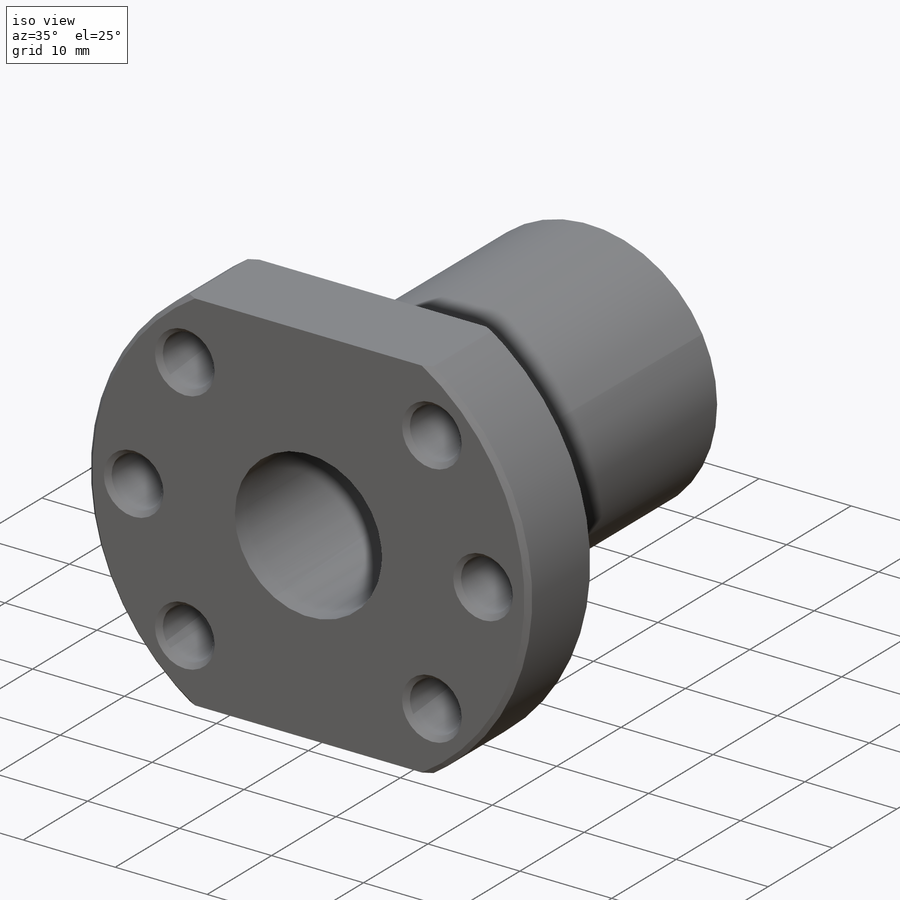
[diagram: iso view]
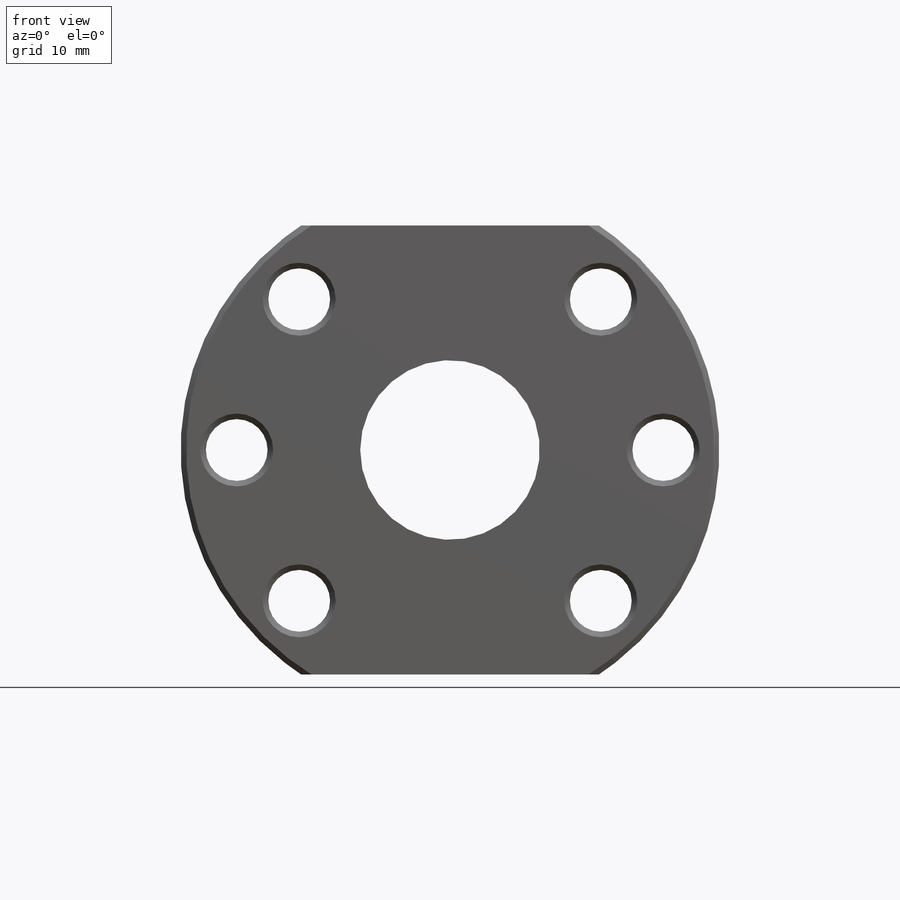
[diagram: front view]
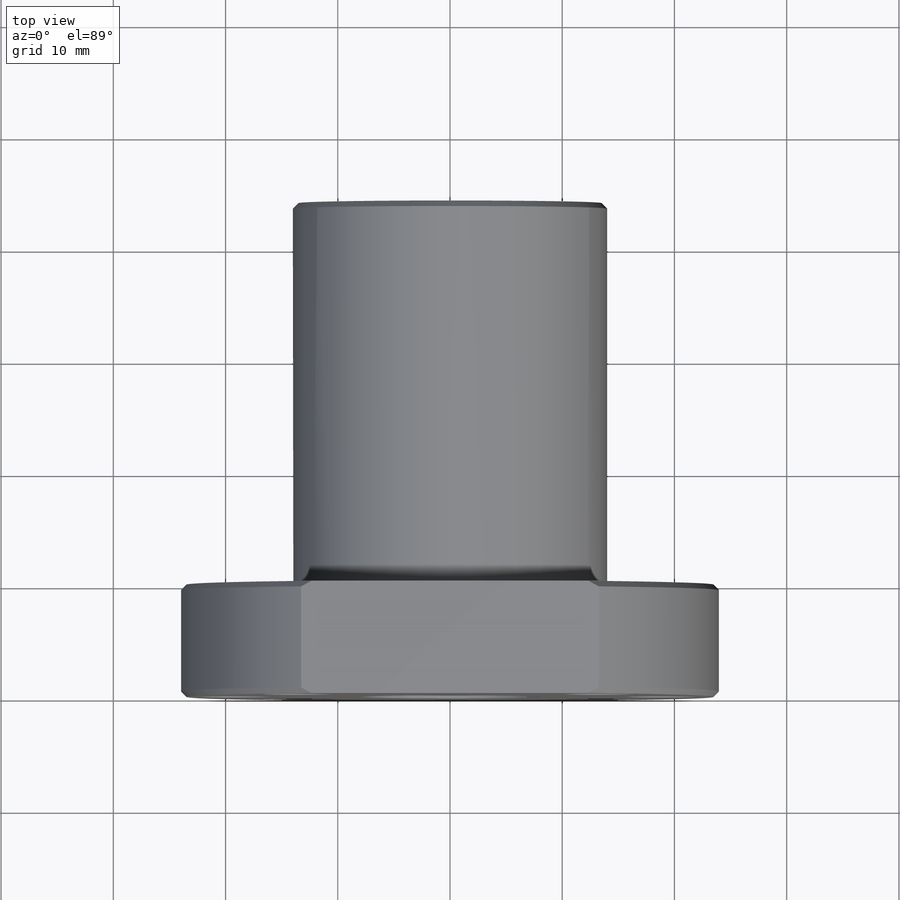
[diagram: top view]
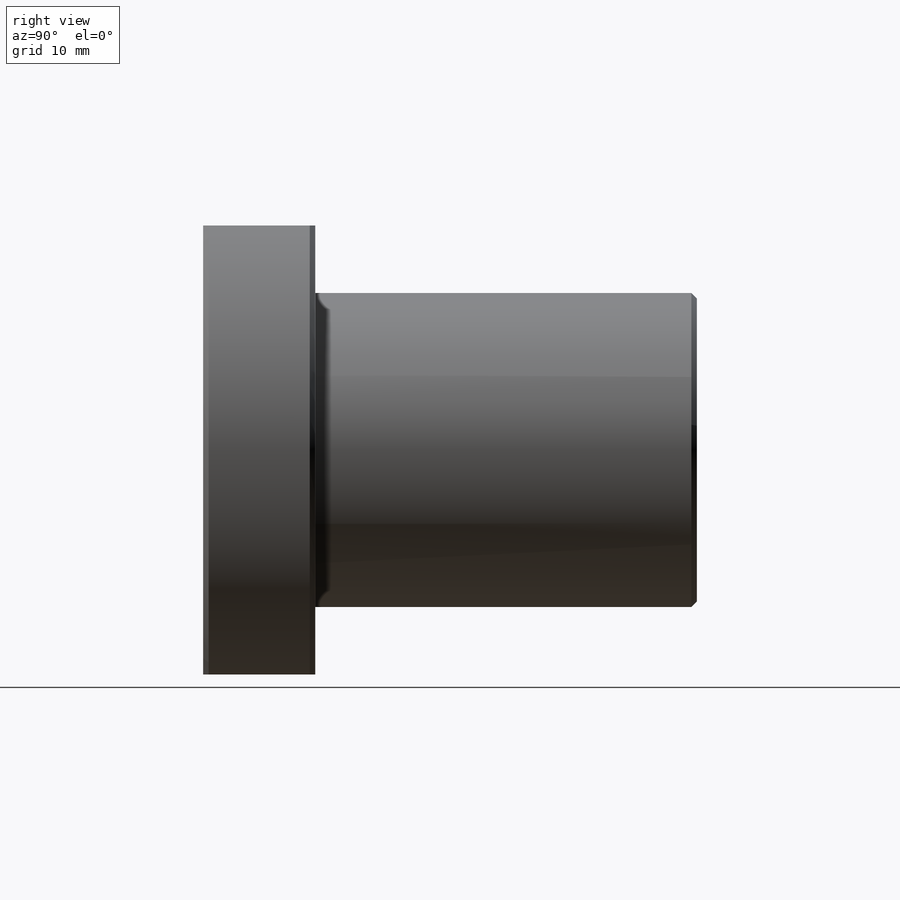
[diagram: right view]
SOLIDWORKS PART (.sldprt)
format: sldprt  version: not decoded by parser v0  size: 238,080 bytes
history: native  units: mm
features: sketch x5, cut_extrude x3, extrude x2, chamfer x2, material x1, mirror x1 (+12 scaffold rows collapsed)
feature tree (26):
  scaffold x12  (default folders/planes/origin — collapsed)
  material  "Material <not specified>"
  sketch  "Sketch1"  dims[D1=48.0mm]
  extrude  "Boss-Extrude1"  Depth=10mm
  sketch  "Sketch2"  dims[D1=28.0mm]
  extrude  "Boss-Extrude2"  Depth=34mm
  sketch  "Sketch3"  dims[D1=~82.684433mm D2=72.2263mm D3=20.0mm D4=20.0mm]
  cut_extrude  "Cut-Extrude1"  [1 undecoded]
  sketch  "Sketch4"  dims[D1=16.0mm]
  cut_extrude  "Cut-Extrude2"  [1 undecoded]
  sketch  "Sketch7"  dims[c1.D1=5.5mm c1.D4=5.5mm c1.D7=5.5mm c1.D2=~27.089714mm c2.D2=45.0deg c2.D3=19.0mm c2.D5=19.0mm c2.D6=38.0mm c3.D6=45.0deg c3.D8=19.0mm]
  cut_extrude  "Cut-Extrude3"  [1 undecoded]
  chamfer  "Chamfer1"  Distance=0.5mm Angle=45deg
  mirror  "Mirror1"
  chamfer  "Chamfer2"  Distance=0.5mm Angle=45deg
decode coverage: 9 of 13 modeling features carry decoded parameters
note: ~ marks probable driven/reference dimensions
note: 3 parameter values undecoded
summary: no parameter record found for 3 features
note: suppression state not decoded; provenance and decode notes live in map.json
